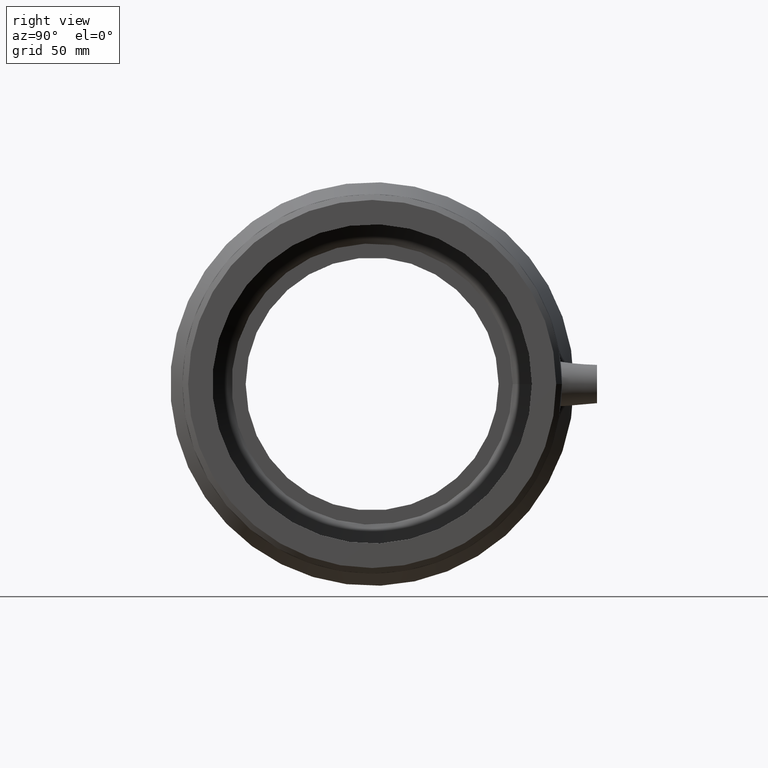
[diagram: clean part render]
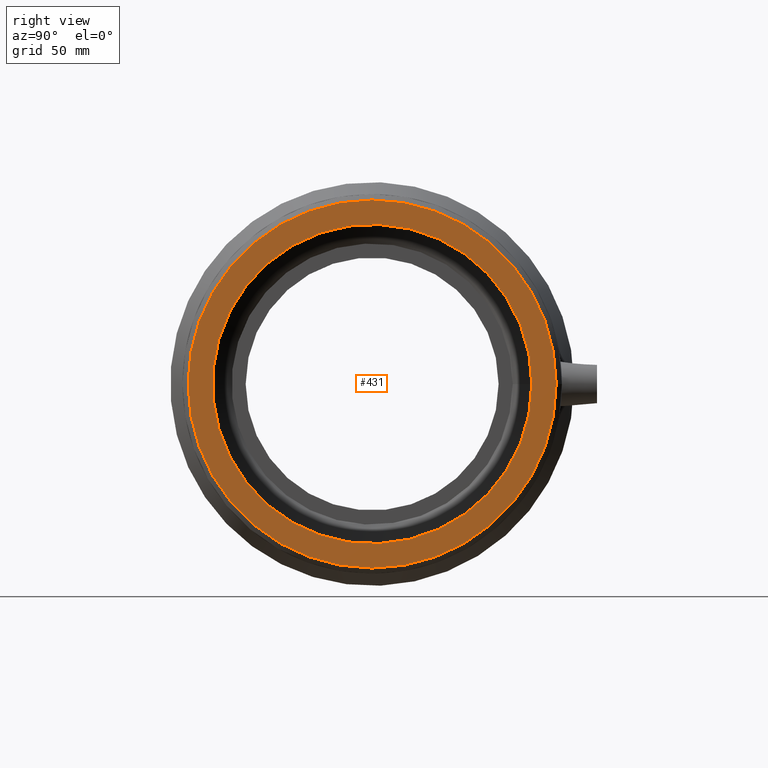
[diagram: same view with one face highlighted and labeled with its STEP entity id]
A machine part, right view. The second image highlights one B-rep face of the part: STEP entity #431.
In plain terms, the highlighted planar face has unit normal (1, 0, 0).
Its self-contained STEP definition (entity closure, byte-faithful):
#55=FACE_BOUND('',#175,.T.);
#109=FACE_OUTER_BOUND('',#174,.T.);
#174=EDGE_LOOP('',(#367));
#175=EDGE_LOOP('',(#368));
#224=CIRCLE('',#496,72.0322);
#225=CIRCLE('',#498,62.5);
#263=VERTEX_POINT('',#821);
#264=VERTEX_POINT('',#824);
#302=EDGE_CURVE('',#263,#263,#224,.T.);
#303=EDGE_CURVE('',#264,#264,#225,.T.);
#367=ORIENTED_EDGE('',*,*,#302,.T.);
#368=ORIENTED_EDGE('',*,*,#303,.F.);
#400=PLANE('',#497);
#431=ADVANCED_FACE('',(#109,#55),#400,.T.);
#496=AXIS2_PLACEMENT_3D('',#822,#624,#625);
#497=AXIS2_PLACEMENT_3D('',#823,#626,#627);
#498=AXIS2_PLACEMENT_3D('',#825,#628,#629);
#624=DIRECTION('center_axis',(1.,0.,0.));
#625=DIRECTION('ref_axis',(0.,0.,-1.));
#626=DIRECTION('center_axis',(1.,0.,0.));
#627=DIRECTION('ref_axis',(0.,0.,-1.));
#628=DIRECTION('center_axis',(1.,0.,0.));
#629=DIRECTION('ref_axis',(0.,0.,-1.));
#821=CARTESIAN_POINT('',(85.5,72.0322,0.));
#822=CARTESIAN_POINT('Origin',(85.5,0.,0.));
#823=CARTESIAN_POINT('Origin',(85.5,62.5,0.));
#824=CARTESIAN_POINT('',(85.5,62.5,0.));
#825=CARTESIAN_POINT('Origin',(85.5,0.,0.));